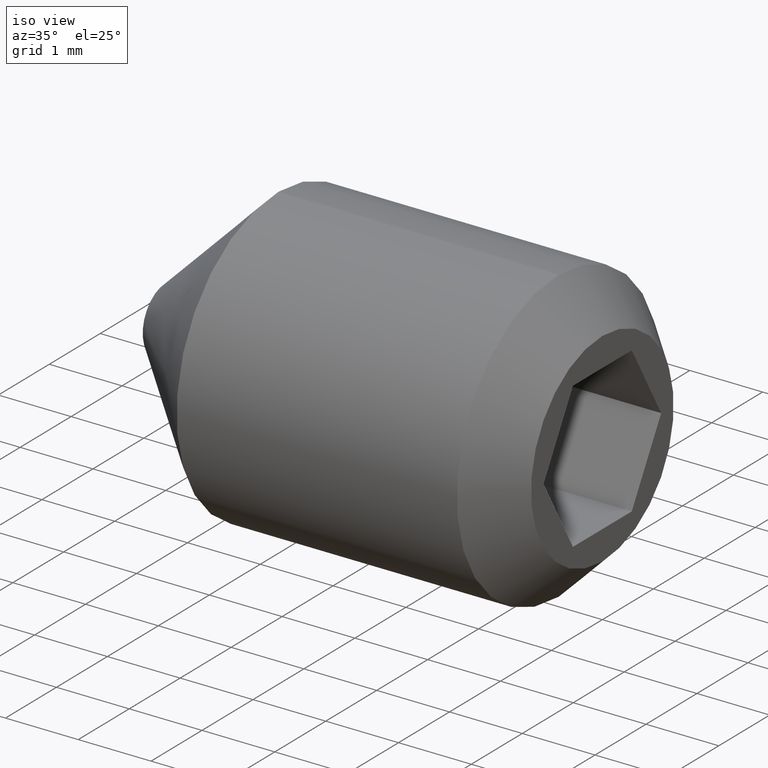
[diagram: clean part render]
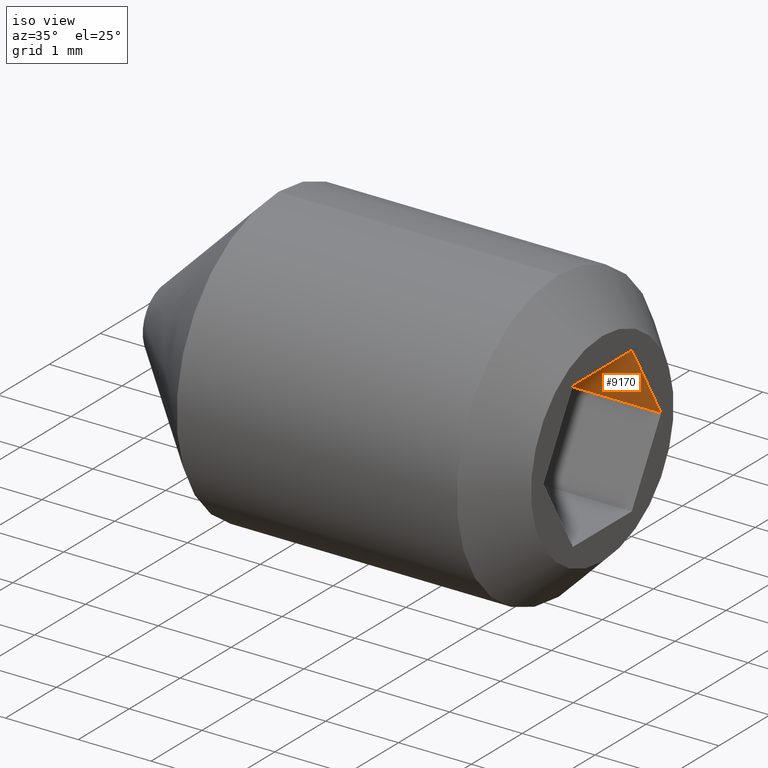
[diagram: same view with one face highlighted and labeled with its STEP entity id]
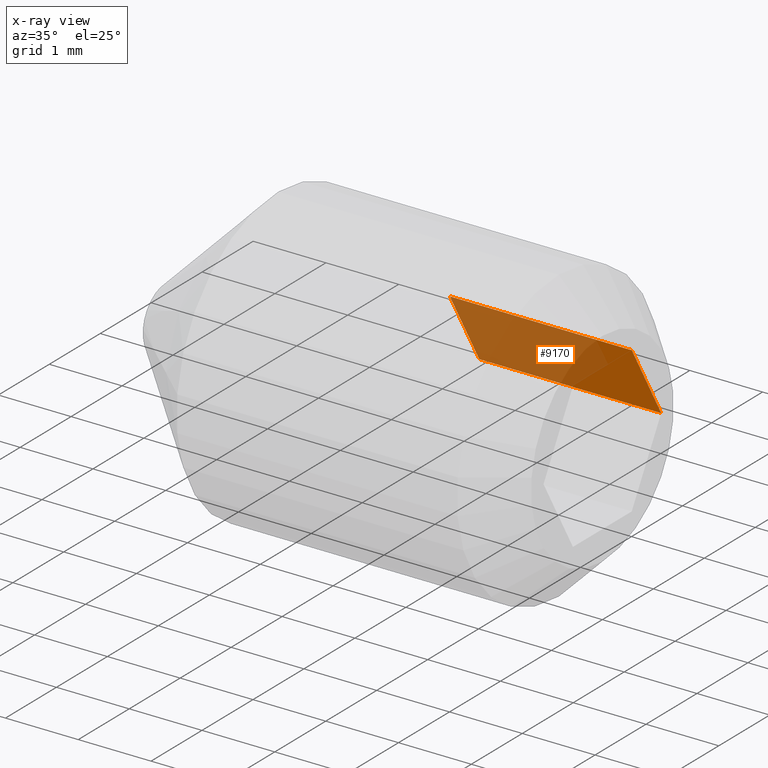
[diagram: x-ray of the same camera — body ghosted, the highlighted face saturated]
A machine part, iso view. The second image highlights one B-rep face of the part: STEP entity #9170.
The next image is the same camera in x-ray: the body ghosted, the highlighted face saturated — about 72% of this face is hidden behind the body in this view.
In plain terms, the highlighted planar face has unit normal (-0, 0.866, 0.5).
Its self-contained STEP definition (entity closure, byte-faithful):
#218 = VECTOR ( 'NONE', #3538, 1000.000000000000200 ) ;
#866 = VERTEX_POINT ( 'NONE', #6437 ) ;
#934 = ORIENTED_EDGE ( 'NONE', *, *, #5652, .T. ) ;
#941 = CARTESIAN_POINT ( 'NONE',  ( 3.500000000000000000, 1.154700538379251700, -1.644120263289735000E-016 ) ) ;
#1760 = CARTESIAN_POINT ( 'NONE',  ( 3.500000000000000000, 0.5773502691896261800, 0.9999999999999997800 ) ) ;
#1894 = LINE ( 'NONE', #7055, #10923 ) ;
#2283 = EDGE_CURVE ( 'NONE', #11263, #10692, #1894, .T. ) ;
#2513 = CARTESIAN_POINT ( 'NONE',  ( 3.500000000000000000, 0.5773502691896261800, 0.9999999999999997800 ) ) ;
#2670 = LINE ( 'NONE', #7894, #218 ) ;
#3449 = DIRECTION ( 'NONE',  ( 0.0000000000000000000, -0.4999999999999997800, 0.8660254037844387100 ) ) ;
#3538 = DIRECTION ( 'NONE',  ( 0.0000000000000000000, -0.4999999999999997800, 0.8660254037844387100 ) ) ;
#3723 = CARTESIAN_POINT ( 'NONE',  ( 3.500000000000000000, 1.154700538379251700, -1.644120263289735000E-016 ) ) ;
#4368 = DIRECTION ( 'NONE',  ( -3.061515884555941900E-017, 0.8660254037844388200, 0.4999999999999998300 ) ) ;
#4453 = LINE ( 'NONE', #2513, #10327 ) ;
#5104 = AXIS2_PLACEMENT_3D ( 'NONE', #5219, #4368, #3449 ) ;
#5203 = EDGE_CURVE ( 'NONE', #11263, #5495, #11021, .T. ) ;
#5219 = CARTESIAN_POINT ( 'NONE',  ( 3.500000000000000000, 1.154700538379251700, -1.644120263289735000E-016 ) ) ;
#5232 = ORIENTED_EDGE ( 'NONE', *, *, #5203, .T. ) ;
#5495 = VERTEX_POINT ( 'NONE', #9437 ) ;
#5652 = EDGE_CURVE ( 'NONE', #5495, #866, #2670, .T. ) ;
#5863 = EDGE_LOOP ( 'NONE', ( #934, #6047, #8902, #5232 ) ) ;
#6047 = ORIENTED_EDGE ( 'NONE', *, *, #10296, .F. ) ;
#6109 = DIRECTION ( 'NONE',  ( 0.0000000000000000000, -0.4999999999999997800, 0.8660254037844387100 ) ) ;
#6437 = CARTESIAN_POINT ( 'NONE',  ( 6.000000000000000000, 0.5773502691896261800, 1.000000000000000000 ) ) ;
#7055 = CARTESIAN_POINT ( 'NONE',  ( 3.500000000000000000, 1.154700538379251700, -1.644120263289735000E-016 ) ) ;
#7894 = CARTESIAN_POINT ( 'NONE',  ( 6.000000000000000000, 1.154700538379251700, -1.133623210117634900E-017 ) ) ;
#8166 = FACE_OUTER_BOUND ( 'NONE', #5863, .T. ) ;
#8902 = ORIENTED_EDGE ( 'NONE', *, *, #2283, .F. ) ;
#9170 = ADVANCED_FACE ( 'NONE', ( #8166 ), #10555, .F. ) ;
#9333 = DIRECTION ( 'NONE',  ( 1.000000000000000000, -0.0000000000000000000, 6.123031769111886300E-017 ) ) ;
#9437 = CARTESIAN_POINT ( 'NONE',  ( 6.000000000000000000, 1.154700538379251700, -1.133623210117634900E-017 ) ) ;
#9530 = VECTOR ( 'NONE', #9333, 1000.000000000000000 ) ;
#9599 = DIRECTION ( 'NONE',  ( 1.000000000000000000, -0.0000000000000000000, 6.123031769111886300E-017 ) ) ;
#10296 = EDGE_CURVE ( 'NONE', #10692, #866, #4453, .T. ) ;
#10327 = VECTOR ( 'NONE', #9599, 1000.000000000000000 ) ;
#10555 = PLANE ( 'NONE',  #5104 ) ;
#10692 = VERTEX_POINT ( 'NONE', #1760 ) ;
#10923 = VECTOR ( 'NONE', #6109, 1000.000000000000200 ) ;
#11021 = LINE ( 'NONE', #941, #9530 ) ;
#11263 = VERTEX_POINT ( 'NONE', #3723 ) ;